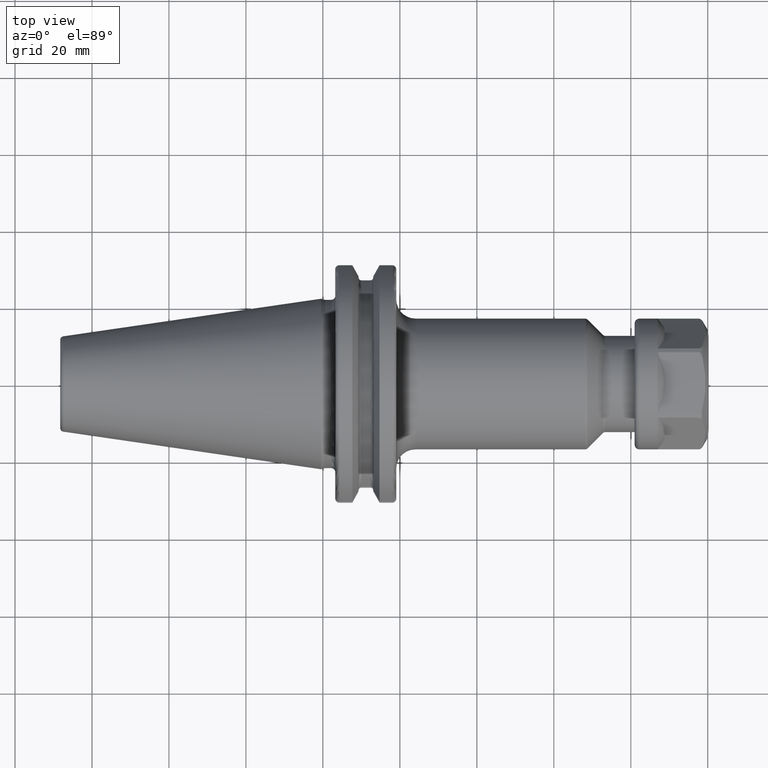
[diagram: clean part render]
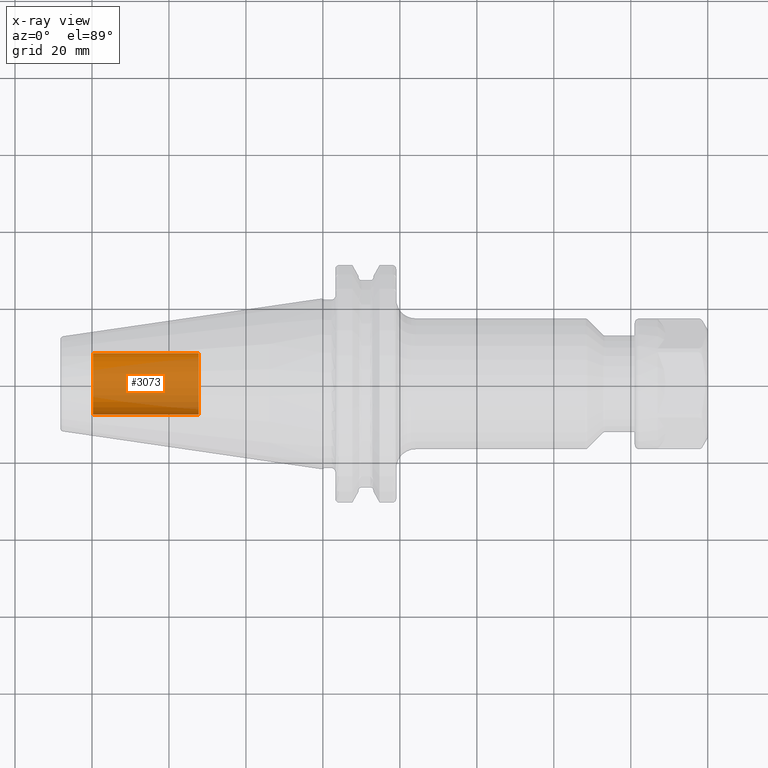
[diagram: x-ray — body ghosted, one internal face saturated and labeled with its STEP entity id]
A machine part, top view, then the same camera in x-ray: the body is ghosted and one INTERNAL B-rep face — a face not visible from any outside direction — is saturated and labeled: STEP entity #3073.
In plain terms, the highlighted cylindrical surface (edge-blend (fillet) strip) has radius 8.0028 mm, axis along (1, 0, 0).
Its self-contained STEP definition (entity closure, byte-faithful):
#3008=CARTESIAN_POINT('',(-5.98E1,0.E0,0.E0));
#3009=DIRECTION('',(-1.E0,0.E0,0.E0));
#3010=DIRECTION('',(0.E0,1.E0,0.E0));
#3011=AXIS2_PLACEMENT_3D('',#3008,#3009,#3010);
#3013=DIRECTION('',(1.E0,0.E0,0.E0));
#3014=VECTOR('',#3013,2.755E1);
#3015=CARTESIAN_POINT('',(-5.98E1,-8.00275E0,0.E0));
#3016=LINE('',#3015,#3014);
#3022=DIRECTION('',(1.E0,0.E0,0.E0));
#3023=VECTOR('',#3022,2.755E1);
#3024=CARTESIAN_POINT('',(-5.98E1,8.00275E0,0.E0));
#3025=LINE('',#3024,#3023);
#3031=CARTESIAN_POINT('',(-3.225E1,0.E0,0.E0));
#3032=DIRECTION('',(1.E0,0.E0,0.E0));
#3033=DIRECTION('',(0.E0,-1.E0,0.E0));
#3034=AXIS2_PLACEMENT_3D('',#3031,#3032,#3033);
#3046=CARTESIAN_POINT('',(-5.98E1,8.00275E0,0.E0));
#3047=CARTESIAN_POINT('',(-5.98E1,-8.00275E0,0.E0));
#3048=VERTEX_POINT('',#3046);
#3049=VERTEX_POINT('',#3047);
#3050=CARTESIAN_POINT('',(-3.225E1,8.00275E0,0.E0));
#3051=CARTESIAN_POINT('',(-3.225E1,-8.00275E0,0.E0));
#3052=VERTEX_POINT('',#3050);
#3053=VERTEX_POINT('',#3051);
#3058=CARTESIAN_POINT('',(-5.98E1,0.E0,0.E0));
#3059=DIRECTION('',(1.E0,0.E0,0.E0));
#3060=DIRECTION('',(0.E0,1.E0,0.E0));
#3061=AXIS2_PLACEMENT_3D('',#3058,#3059,#3060);
#3062=CYLINDRICAL_SURFACE('',#3061,8.00275E0);
#3064=ORIENTED_EDGE('',*,*,#3063,.T.);
#3066=ORIENTED_EDGE('',*,*,#3065,.T.);
#3068=ORIENTED_EDGE('',*,*,#3067,.T.);
#3070=ORIENTED_EDGE('',*,*,#3069,.F.);
#3071=EDGE_LOOP('',(#3064,#3066,#3068,#3070));
#3072=FACE_OUTER_BOUND('',#3071,.F.);
#3073=ADVANCED_FACE('',(#3072),#3062,.T.);
#3012=CIRCLE('',#3011,8.00275E0);
#3035=CIRCLE('',#3034,8.00275E0);
#3063=EDGE_CURVE('',#3048,#3049,#3012,.T.);
#3065=EDGE_CURVE('',#3049,#3053,#3016,.T.);
#3067=EDGE_CURVE('',#3053,#3052,#3035,.T.);
#3069=EDGE_CURVE('',#3048,#3052,#3025,.T.);